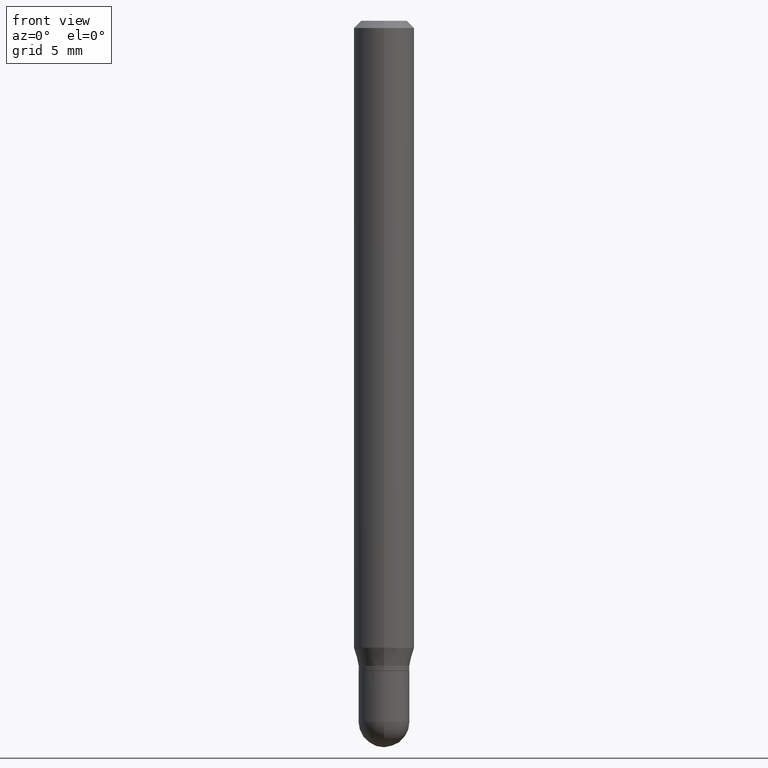
[diagram: clean part render]
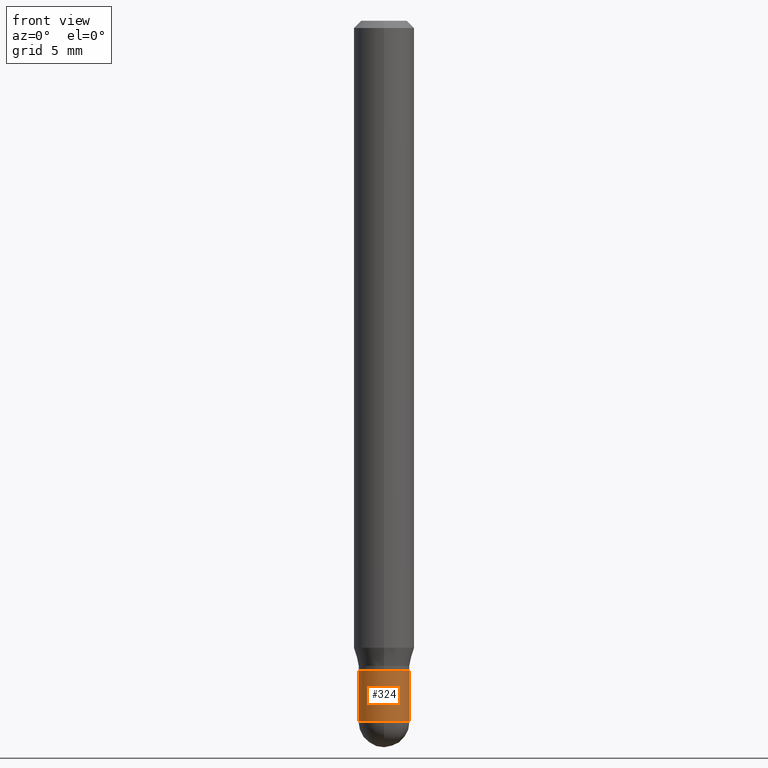
[diagram: same view with one face highlighted and labeled with its STEP entity id]
A machine part, front view. The second image highlights one B-rep face of the part: STEP entity #324.
In plain terms, the highlighted cylindrical surface (edge-blend (fillet) strip) has radius 1.3335 mm, axis along (-0, 0, 1).
Its self-contained STEP definition (entity closure, byte-faithful):
#14 = VERTEX_POINT ( 'NONE', #481 ) ;
#40 = VERTEX_POINT ( 'NONE', #91 ) ;
#43 = DIRECTION ( 'NONE',  ( -2.445468806185136597E-29, 3.491481338843145583E-15, 1.000000000000000000 ) ) ;
#58 = ORIENTED_EDGE ( 'NONE', *, *, #506, .F. ) ;
#84 = CARTESIAN_POINT ( 'NONE',  ( 3.539816096952984843E-29, -5.053919237975452413E-15, -1.447499999999999787 ) ) ;
#85 = VECTOR ( 'NONE', #457, 39.37007874015748143 ) ;
#91 = CARTESIAN_POINT ( 'NONE',  ( -0.05249999999999999806, -4.496708661077424547E-15, -1.447499999999999787 ) ) ;
#92 = CARTESIAN_POINT ( 'NONE',  ( -0.05249999999999999806, -4.496708661077424547E-15, -1.342000000000000082 ) ) ;
#129 = ORIENTED_EDGE ( 'NONE', *, *, #319, .T. ) ;
#154 = VERTEX_POINT ( 'NONE', #92 ) ;
#196 = CARTESIAN_POINT ( 'NONE',  ( -3.730349362740171836E-16, -0.05250000000000507733, -1.447499999999999565 ) ) ;
#208 = DIRECTION ( 'NONE',  ( -2.445468806185136877E-29, 3.491481338843145188E-15, 1.000000000000000000 ) ) ;
#215 = EDGE_LOOP ( 'NONE', ( #486, #435, #129, #244, #58 ) ) ;
#238 = VERTEX_POINT ( 'NONE', #196 ) ;
#244 = ORIENTED_EDGE ( 'NONE', *, *, #291, .T. ) ;
#271 = CIRCLE ( 'NONE', #374, 0.05249999999999999806 ) ;
#280 = DIRECTION ( 'NONE',  ( 1.000000000000000000, -6.982962677686268288E-15, 0.000000000000000000 ) ) ;
#285 = EDGE_CURVE ( 'NONE', #40, #238, #353, .T. ) ;
#291 = EDGE_CURVE ( 'NONE', #14, #309, #498, .T. ) ;
#297 = CARTESIAN_POINT ( 'NONE',  ( 0.05249999999999999806, -3.666055405785289629E-16, 2.559992807292866011E-30 ) ) ;
#300 = DIRECTION ( 'NONE',  ( 1.000000000000000000, -6.982962677686268288E-15, 0.000000000000000000 ) ) ;
#309 = VERTEX_POINT ( 'NONE', #479 ) ;
#319 = EDGE_CURVE ( 'NONE', #238, #14, #480, .T. ) ;
#324 = ADVANCED_FACE ( 'NONE', ( #396 ), #393, .T. ) ;
#353 = CIRCLE ( 'NONE', #361, 0.05249999999999999806 ) ;
#355 = LINE ( 'NONE', #399, #496 ) ;
#361 = AXIS2_PLACEMENT_3D ( 'NONE', #466, #379, #384 ) ;
#362 = DIRECTION ( 'NONE',  ( -2.445468806185136597E-29, 3.491481338843145583E-15, 1.000000000000000000 ) ) ;
#374 = AXIS2_PLACEMENT_3D ( 'NONE', #419, #432, #300 ) ;
#379 = DIRECTION ( 'NONE',  ( -2.445468806185136597E-29, 3.491481338843145583E-15, 1.000000000000000000 ) ) ;
#384 = DIRECTION ( 'NONE',  ( 1.000000000000000000, -6.982962677686268288E-15, 0.000000000000000000 ) ) ;
#393 = CYLINDRICAL_SURFACE ( 'NONE', #438, 0.05249999999999999806 ) ;
#396 = FACE_OUTER_BOUND ( 'NONE', #215, .T. ) ;
#399 = CARTESIAN_POINT ( 'NONE',  ( -0.05249999999999999806, 3.730349362740525838E-16, -2.582440922383825311E-30 ) ) ;
#407 = EDGE_CURVE ( 'NONE', #40, #154, #355, .T. ) ;
#419 = CARTESIAN_POINT ( 'NONE',  ( 3.281819137900453057E-29, -4.685567956727500961E-15, -1.342000000000000082 ) ) ;
#432 = DIRECTION ( 'NONE',  ( -2.445468806185136597E-29, 3.491481338843145583E-15, 1.000000000000000000 ) ) ;
#435 = ORIENTED_EDGE ( 'NONE', *, *, #285, .T. ) ;
#438 = AXIS2_PLACEMENT_3D ( 'NONE', #441, #43, #483 ) ;
#441 = CARTESIAN_POINT ( 'NONE',  ( 0.000000000000000000, 0.000000000000000000, 0.000000000000000000 ) ) ;
#457 = DIRECTION ( 'NONE',  ( -2.445468806185136877E-29, 3.491481338843145188E-15, 1.000000000000000000 ) ) ;
#466 = CARTESIAN_POINT ( 'NONE',  ( 3.539816096952984843E-29, -5.053919237975452413E-15, -1.447499999999999787 ) ) ;
#479 = CARTESIAN_POINT ( 'NONE',  ( 0.05249999999999999806, -5.052173497306030121E-15, -1.342000000000000082 ) ) ;
#480 = CIRCLE ( 'NONE', #503, 0.05249999999999999806 ) ;
#481 = CARTESIAN_POINT ( 'NONE',  ( 0.05249999999999999806, -5.236349137930005453E-15, -1.447499999999999787 ) ) ;
#483 = DIRECTION ( 'NONE',  ( 1.000000000000000000, -6.982962677686265922E-15, 4.876176775795935232E-29 ) ) ;
#486 = ORIENTED_EDGE ( 'NONE', *, *, #407, .F. ) ;
#496 = VECTOR ( 'NONE', #208, 39.37007874015748143 ) ;
#498 = LINE ( 'NONE', #297, #85 ) ;
#503 = AXIS2_PLACEMENT_3D ( 'NONE', #84, #362, #280 ) ;
#506 = EDGE_CURVE ( 'NONE', #154, #309, #271, .T. ) ;